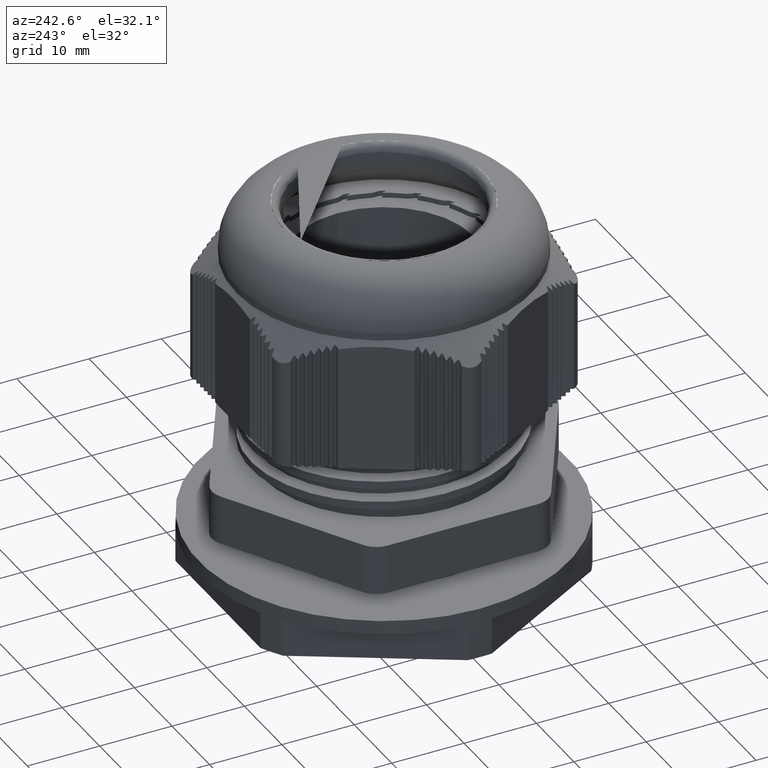
[diagram: clean part render]
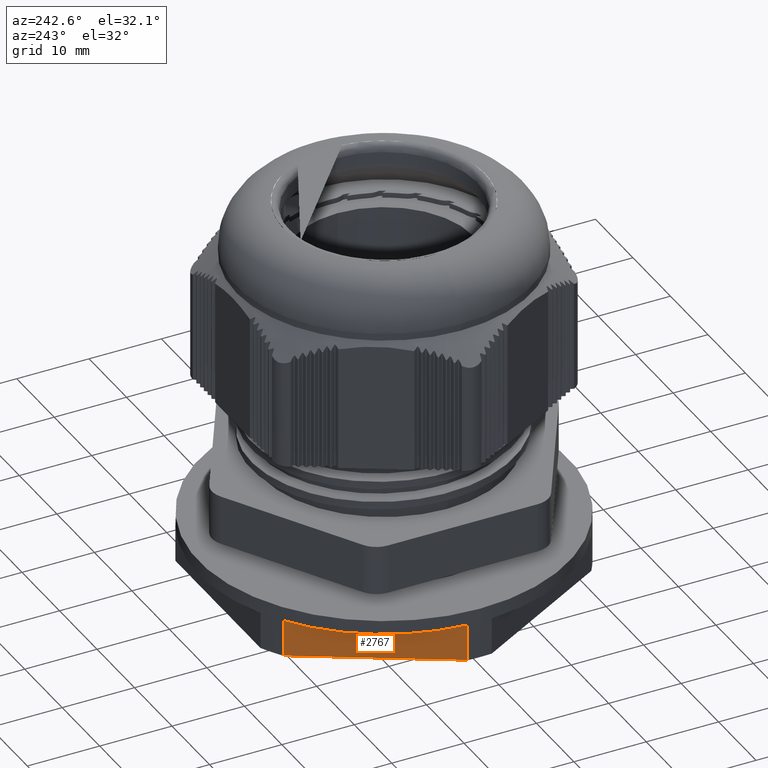
[diagram: same view with one face highlighted and labeled with its STEP entity id]
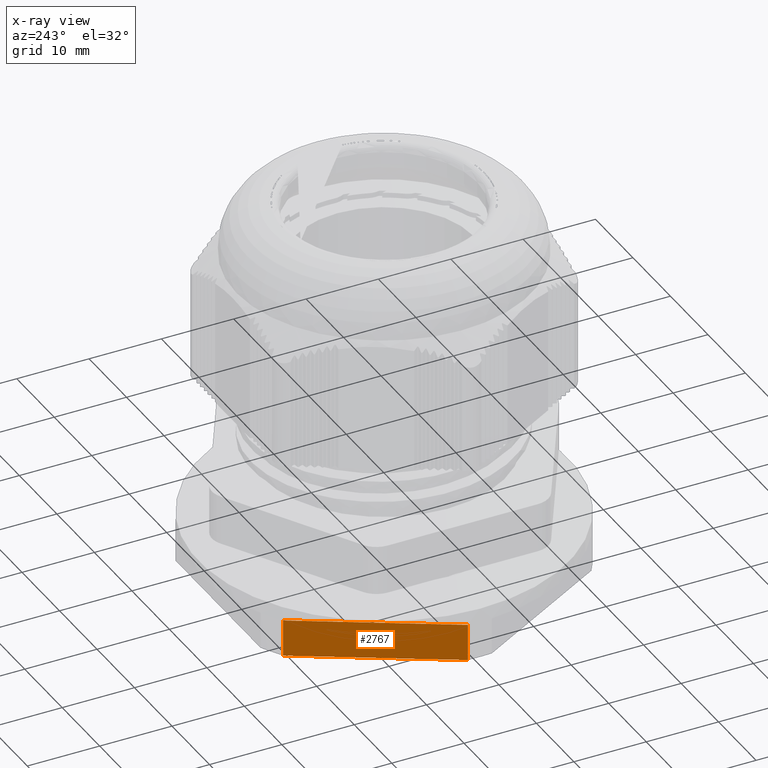
[diagram: x-ray of the same camera — body ghosted, the highlighted face saturated]
A machine part, auxiliary view. The second image highlights one B-rep face of the part: STEP entity #2767.
The next image is the same camera in x-ray: the body ghosted, the highlighted face saturated — about 0% of this face is hidden behind the body in this view.
In plain terms, the highlighted planar face has unit normal (-0.866, 0.5, 0).
Its self-contained STEP definition (entity closure, byte-faithful):
#1297 = EDGE_CURVE ( 'NONE', #1640, #1600, #10256, .T. ) ;
#1301 = EDGE_CURVE ( 'NONE', #1621, #1640, #10260, .T. ) ;
#1319 = EDGE_CURVE ( 'NONE', #1622, #1600, #10378, .T. ) ;
#1338 = EDGE_CURVE ( 'NONE', #1621, #1622, #10467, .T. ) ;
#1600 = VERTEX_POINT ( 'NONE', #11585 ) ;
#1621 = VERTEX_POINT ( 'NONE', #11609 ) ;
#1622 = VERTEX_POINT ( 'NONE', #11672 ) ;
#1640 = VERTEX_POINT ( 'NONE', #11649 ) ;
#2767 = ADVANCED_FACE ( 'NONE', ( #17624 ), #17595, .T. ) ;
#3321 = EDGE_LOOP ( 'NONE', ( #21370, #21300, #21312, #21305 ) ) ;
#10241 = CARTESIAN_POINT ( 'NONE',  ( -685.4858346309883900, 352.2975476619815300, 1.945886070432598200 ) ) ;
#10256 = LINE ( 'NONE', #10241, #10570 ) ;
#10260 = LINE ( 'NONE', #10330, #10573 ) ;
#10271 = DIRECTION ( 'NONE',  ( 0.0000000000000000000, 0.0000000000000000000, 1.000000000000000000 ) ) ;
#10329 = DIRECTION ( 'NONE',  ( 0.4999999999999982200, 0.8660254037844396000, 0.0000000000000000000 ) ) ;
#10330 = CARTESIAN_POINT ( 'NONE',  ( -696.1144538899138800, 333.8882390912176600, 1.595886070432598100 ) ) ;
#10353 = CARTESIAN_POINT ( 'NONE',  ( -686.1999443206008200, 351.0606733973956500, 6.695886070432576900 ) ) ;
#10368 = DIRECTION ( 'NONE',  ( 0.5000000000000004400, 0.8660254037844383700, 0.0000000000000000000 ) ) ;
#10378 = LINE ( 'NONE', #10353, #10592 ) ;
#10467 = LINE ( 'NONE', #10470, #10634 ) ;
#10470 = CARTESIAN_POINT ( 'NONE',  ( -696.8285635795264200, 332.6513648266317200, 1.945886070432598200 ) ) ;
#10481 = DIRECTION ( 'NONE',  ( 0.0000000000000000000, 0.0000000000000000000, 1.000000000000000000 ) ) ;
#10570 = VECTOR ( 'NONE', #10271, 1000.000000000000000 ) ;
#10573 = VECTOR ( 'NONE', #10329, 1000.000000000000200 ) ;
#10592 = VECTOR ( 'NONE', #10368, 1000.000000000000000 ) ;
#10634 = VECTOR ( 'NONE', #10481, 1000.000000000000000 ) ;
#11585 = CARTESIAN_POINT ( 'NONE',  ( -685.4858346309883900, 352.2975476619815300, 6.695886070432576900 ) ) ;
#11609 = CARTESIAN_POINT ( 'NONE',  ( -696.8285635795263000, 332.6513648266316600, 1.595886070432598100 ) ) ;
#11649 = CARTESIAN_POINT ( 'NONE',  ( -685.4858346309885100, 352.2975476619815800, 1.595886070432598100 ) ) ;
#11672 = CARTESIAN_POINT ( 'NONE',  ( -696.8285635795264200, 332.6513648266317200, 6.695886070432576900 ) ) ;
#16254 = AXIS2_PLACEMENT_3D ( 'NONE', #17589, #17620, #17591 ) ;
#17589 = CARTESIAN_POINT ( 'NONE',  ( -686.1999443206008200, 351.0606733973956500, 1.945886070432598200 ) ) ;
#17591 = DIRECTION ( 'NONE',  ( -0.5000000000000004400, -0.8660254037844383700, 0.0000000000000000000 ) ) ;
#17595 = PLANE ( 'NONE',  #16254 ) ;
#17620 = DIRECTION ( 'NONE',  ( -0.8660254037844383700, 0.5000000000000004400, 0.0000000000000000000 ) ) ;
#17624 = FACE_OUTER_BOUND ( 'NONE', #3321, .T. ) ;
#21300 = ORIENTED_EDGE ( 'NONE', *, *, #1319, .T. ) ;
#21305 = ORIENTED_EDGE ( 'NONE', *, *, #1301, .F. ) ;
#21312 = ORIENTED_EDGE ( 'NONE', *, *, #1297, .F. ) ;
#21370 = ORIENTED_EDGE ( 'NONE', *, *, #1338, .T. ) ;